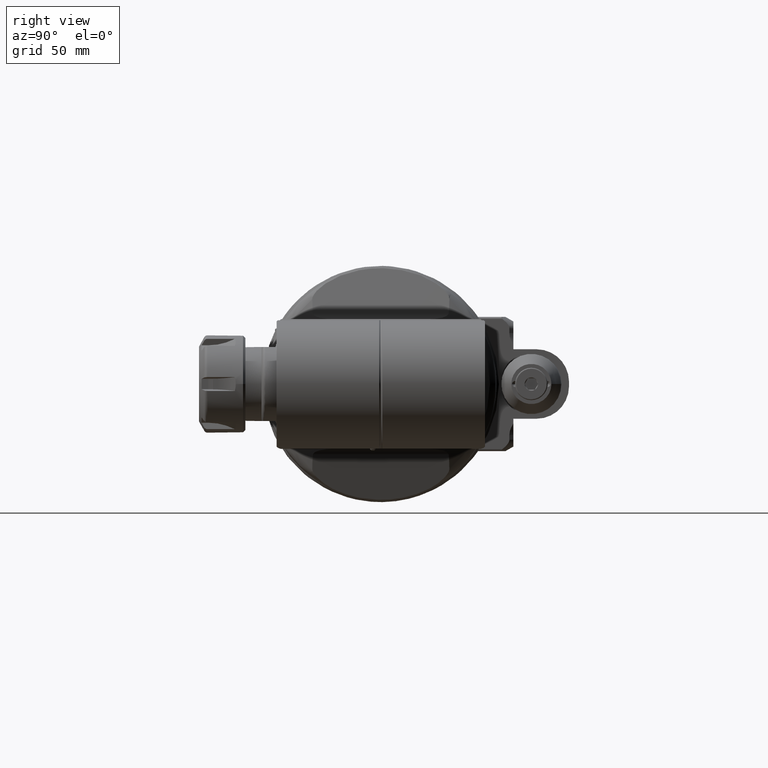
[diagram: clean part render]
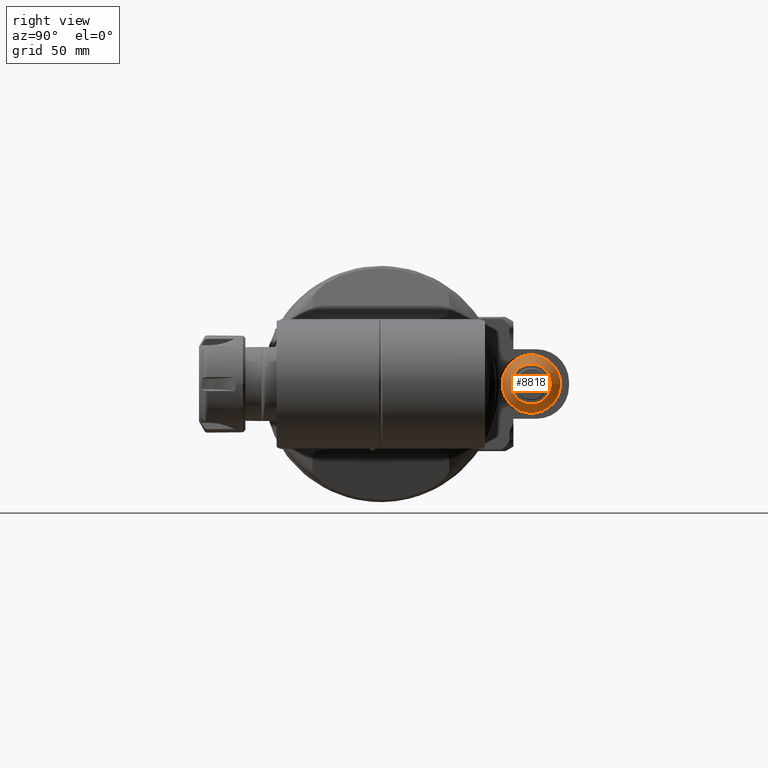
[diagram: same view with one face highlighted and labeled with its STEP entity id]
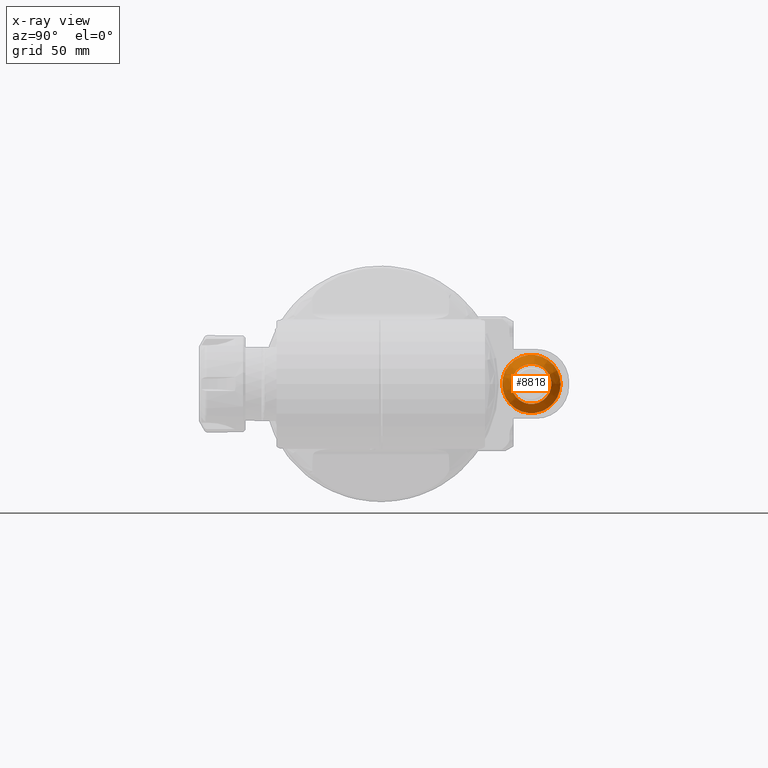
[diagram: x-ray of the same camera — body ghosted, the highlighted face saturated]
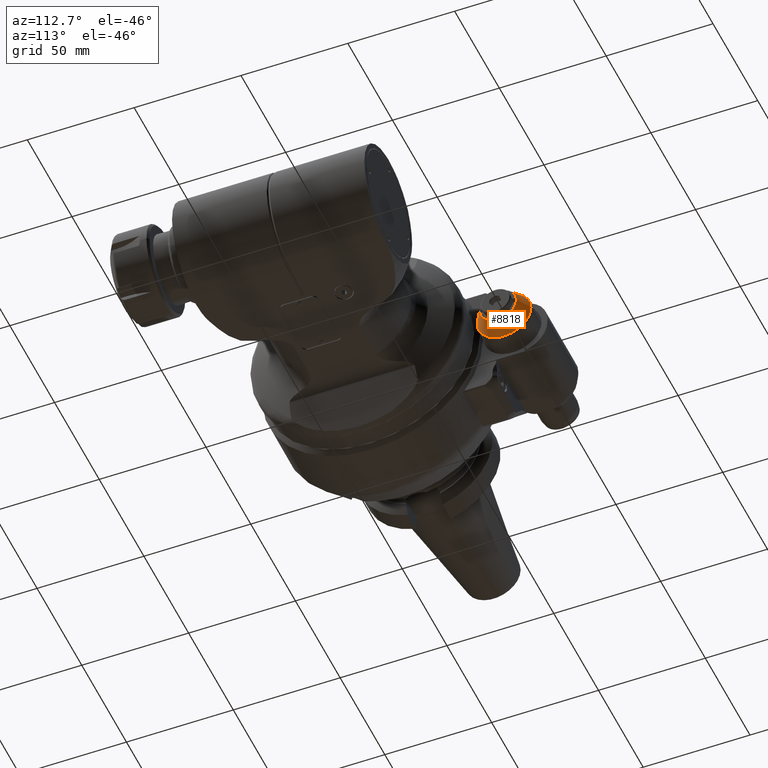
[diagram: same view with one face highlighted and labeled with its STEP entity id]
A machine part, right view. The second image highlights one B-rep face of the part: STEP entity #8818.
The next image is the same camera in x-ray: the body ghosted, the highlighted face saturated — about 0% of this face is hidden behind the body in this view.
A second angle (auxiliary view) of the same face is appended — the face is thin or edge-on in the first view.
In plain terms, the highlighted conical surface has half-angle 30 deg.
Its self-contained STEP definition (entity closure, byte-faithful):
#139=CONICAL_SURFACE('',#9713,10.63397459622,0.523598775598299);
#1015=CIRCLE('',#9712,12.59807621135);
#1016=CIRCLE('',#9714,8.669872981078);
#1502=FACE_OUTER_BOUND('',#2083,.T.);
#2083=EDGE_LOOP('',(#7361,#7362,#7363,#7364));
#2676=LINE('',#15467,#3237);
#3237=VECTOR('',#11732,10.63397459622);
#3992=VERTEX_POINT('',#15462);
#3993=VERTEX_POINT('',#15466);
#5159=EDGE_CURVE('',#3992,#3992,#1015,.T.);
#5160=EDGE_CURVE('',#3992,#3993,#2676,.T.);
#5161=EDGE_CURVE('',#3993,#3993,#1016,.T.);
#7361=ORIENTED_EDGE('',*,*,#5159,.F.);
#7362=ORIENTED_EDGE('',*,*,#5160,.T.);
#7363=ORIENTED_EDGE('',*,*,#5161,.F.);
#7364=ORIENTED_EDGE('',*,*,#5160,.F.);
#8818=ADVANCED_FACE('',(#1502),#139,.T.);
#9712=AXIS2_PLACEMENT_3D('',#15464,#11728,#11729);
#9713=AXIS2_PLACEMENT_3D('',#15465,#11730,#11731);
#9714=AXIS2_PLACEMENT_3D('',#15468,#11733,#11734);
#11728=DIRECTION('center_axis',(-1.,0.,0.));
#11729=DIRECTION('ref_axis',(0.,1.,0.));
#11730=DIRECTION('center_axis',(-1.,0.,0.));
#11731=DIRECTION('ref_axis',(0.,-1.,0.));
#11732=DIRECTION('',(0.866025403784439,-0.5,6.12323399573676E-17));
#11733=DIRECTION('center_axis',(1.,0.,0.));
#11734=DIRECTION('ref_axis',(0.,-1.,0.));
#15462=CARTESIAN_POINT('',(-7.303847577293,77.59807621135,0.));
#15464=CARTESIAN_POINT('Origin',(-7.303847577293,65.,0.));
#15465=CARTESIAN_POINT('Origin',(-3.901923788647,65.,0.));
#15466=CARTESIAN_POINT('',(-0.5,73.66987298108,0.));
#15467=CARTESIAN_POINT('',(-3.901923788647,75.63397459622,-1.30228629514751E-15));
#15468=CARTESIAN_POINT('Origin',(-0.5,65.,0.));